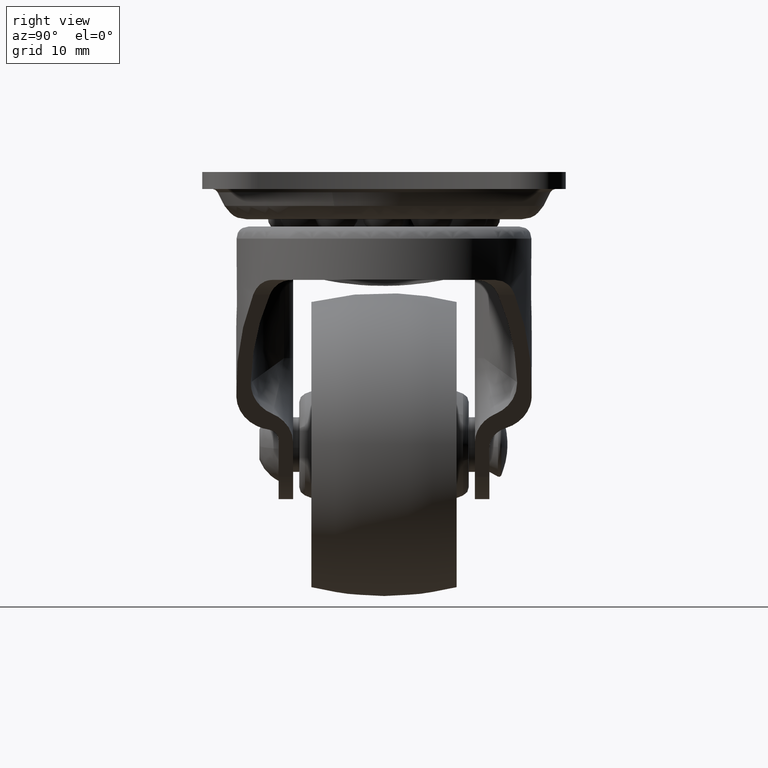
[diagram: clean part render]
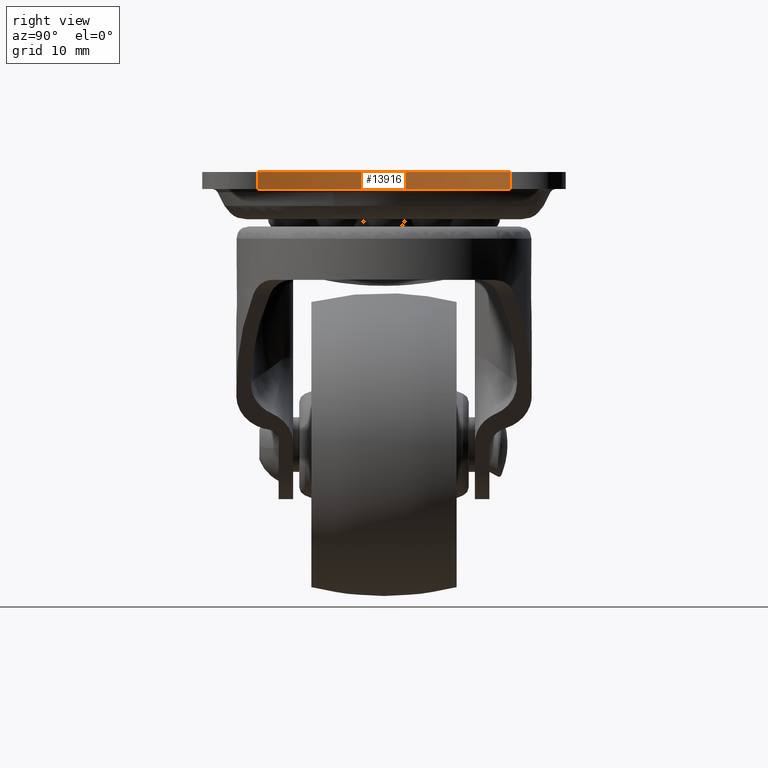
[diagram: same view with one face highlighted and labeled with its STEP entity id]
A machine part, right view. The second image highlights one B-rep face of the part: STEP entity #13916.
In plain terms, the highlighted face is a freeform B-spline surface patch.
Its self-contained STEP definition (entity closure, byte-faithful):
#13432=CARTESIAN_POINT('',(17.340213300685949,10.454545502701979,-1.399999999999956));
#13433=VERTEX_POINT('',#13432);
#13451=CARTESIAN_POINT('',(17.340213209119550,-10.454545210148620,-1.399999999999956));
#13452=VERTEX_POINT('',#13451);
#13453=CARTESIAN_POINT('',(17.340213300685939,10.454545502701990,-1.399999999999956));
#13454=CARTESIAN_POINT('',(14.068045402901076,0.000000160606372,-1.399999999999956));
#13455=CARTESIAN_POINT('',(17.340213209119550,-10.454545210148620,-1.399999999999956));
#13463=(BOUNDED_CURVE()B_SPLINE_CURVE(2,(#13453,#13454,#13455),.UNSPECIFIED.,.F.,.U.)CURVE()GEOMETRIC_REPRESENTATION_ITEM()QUASI_UNIFORM_CURVE()RATIONAL_B_SPLINE_CURVE((1.0,0.954346757671776,1.0))REPRESENTATION_ITEM(''));
#13464=EDGE_CURVE('',#13433,#13452,#13463,.T.);
#13646=CARTESIAN_POINT('',(17.340213209119550,-10.454545210148620,0.0));
#13647=VERTEX_POINT('',#13646);
#13648=CARTESIAN_POINT('',(17.340213209119550,-10.454545210148620,-1.399999999999956));
#13649=CARTESIAN_POINT('',(17.340213209119550,-10.454545210148620,0.0));
#13650=QUASI_UNIFORM_CURVE('',1,(#13648,#13649),.UNSPECIFIED.,.F.,.U.);
#13651=EDGE_CURVE('',#13452,#13647,#13650,.T.);
#13859=CARTESIAN_POINT('',(17.340213300685949,10.454545502701979,0.0));
#13860=VERTEX_POINT('',#13859);
#13876=CARTESIAN_POINT('',(17.340213300685949,10.454545502701979,-1.399999999999956));
#13877=CARTESIAN_POINT('',(17.340213300685949,10.454545502701979,0.0));
#13878=QUASI_UNIFORM_CURVE('',1,(#13876,#13877),.UNSPECIFIED.,.F.,.U.);
#13879=EDGE_CURVE('',#13433,#13860,#13878,.T.);
#13884=CARTESIAN_POINT('',(17.664890450081419,-11.440365002782793,-1.434999999999955));
#13885=CARTESIAN_POINT('',(17.664890450081419,-11.440365002782793,0.035874999999999));
#13886=CARTESIAN_POINT('',(13.706592517946195,0.004251104277276,-1.434999999999955));
#13887=CARTESIAN_POINT('',(13.706592517946195,0.004251104277276,0.035874999999999));
#13888=CARTESIAN_POINT('',(17.667517655748068,11.447958213874845,-1.434999999999956));
#13889=CARTESIAN_POINT('',(17.667517655748068,11.447958213874845,0.035874999999999));
#13897=(BOUNDED_SURFACE()B_SPLINE_SURFACE(1,2,((#13884,#13886,#13888),(#13885,#13887,#13889)),.UNSPECIFIED.,.F.,.F.,.U.)B_SPLINE_SURFACE_WITH_KNOTS((2,2),(3,3),(0.0,1.0),(0.026282448047399,23.564911823993921),.UNSPECIFIED.)GEOMETRIC_REPRESENTATION_ITEM()RATIONAL_B_SPLINE_SURFACE(((0.999868646550415,0.941109528468940,0.991844686835234),(0.999868646550415,0.941109528468940,0.991844686835234)))REPRESENTATION_ITEM('')SURFACE());
#13898=ORIENTED_EDGE('',*,*,#13879,.T.);
#13899=CARTESIAN_POINT('',(17.340213300685939,10.454545502701990,0.0));
#13900=CARTESIAN_POINT('',(14.068045402901076,0.000000160606372,0.0));
#13901=CARTESIAN_POINT('',(17.340213209119550,-10.454545210148620,0.0));
#13909=(BOUNDED_CURVE()B_SPLINE_CURVE(2,(#13899,#13900,#13901),.UNSPECIFIED.,.F.,.U.)CURVE()GEOMETRIC_REPRESENTATION_ITEM()QUASI_UNIFORM_CURVE()RATIONAL_B_SPLINE_CURVE((1.0,0.954346757671776,1.0))REPRESENTATION_ITEM(''));
#13910=EDGE_CURVE('',#13860,#13647,#13909,.T.);
#13911=ORIENTED_EDGE('',*,*,#13910,.T.);
#13912=ORIENTED_EDGE('',*,*,#13651,.F.);
#13913=ORIENTED_EDGE('',*,*,#13464,.F.);
#13914=EDGE_LOOP('',(#13898,#13911,#13912,#13913));
#13915=FACE_OUTER_BOUND('',#13914,.T.);
#13916=ADVANCED_FACE('',(#13915),#13897,.F.);